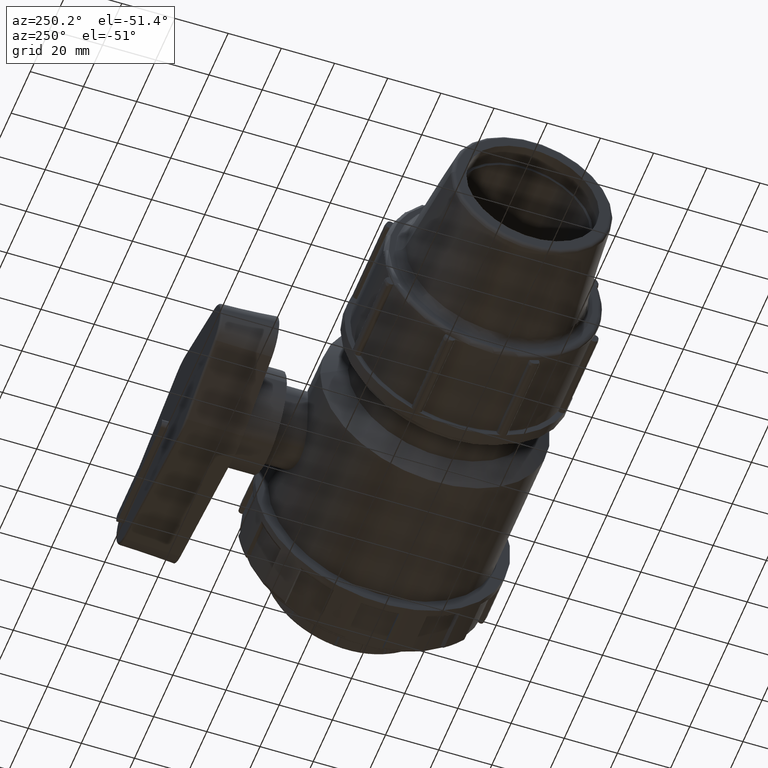
[diagram: clean part render]
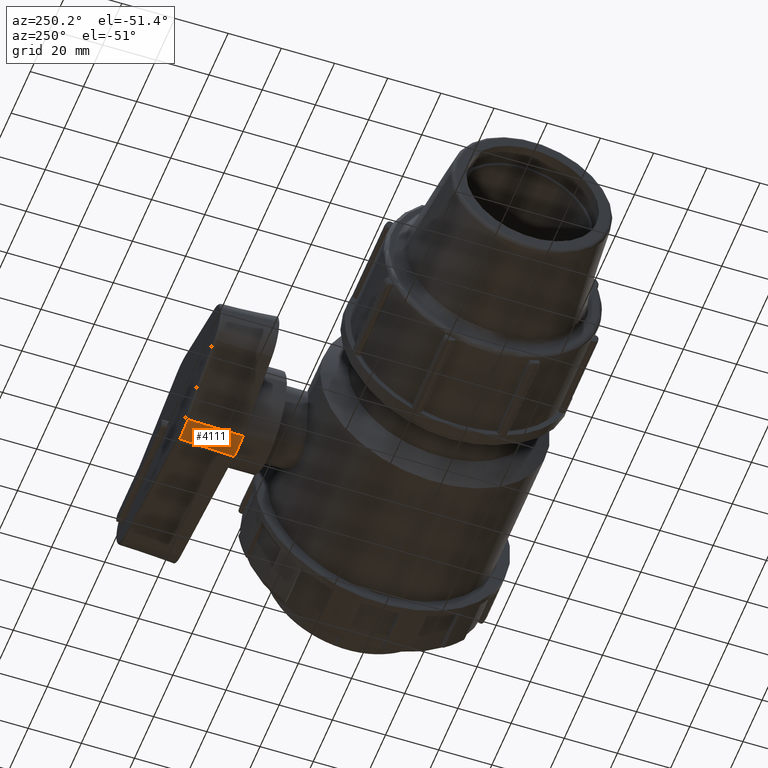
[diagram: same view with one face highlighted and labeled with its STEP entity id]
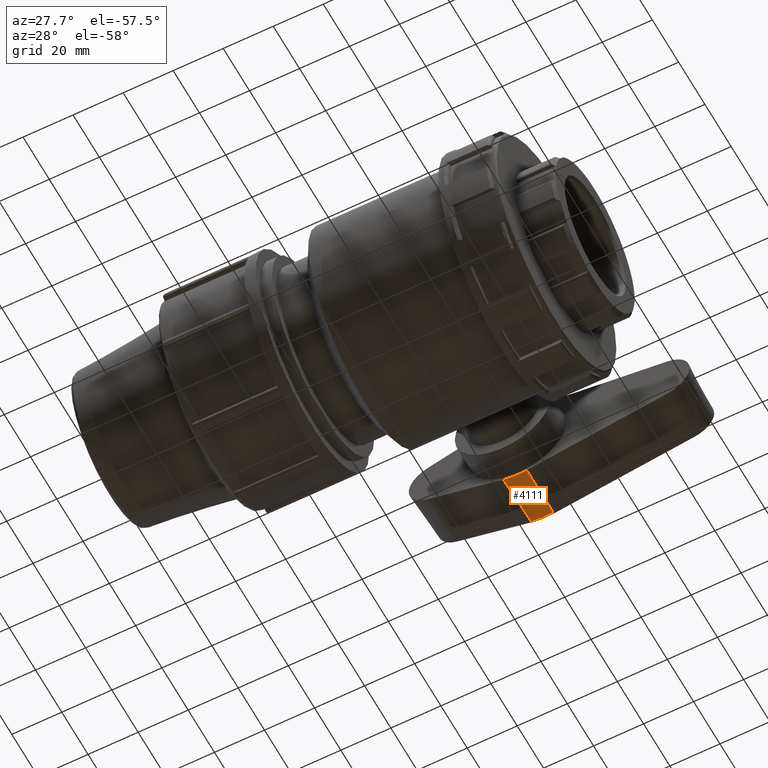
[diagram: same view with one face highlighted and labeled with its STEP entity id]
A machine part, auxiliary view. The second image highlights one B-rep face of the part: STEP entity #4111.
A second angle (auxiliary view) of the same face is appended — the face is thin or edge-on in the first view.
In plain terms, the highlighted conical surface has half-angle 3 deg.
Its self-contained STEP definition (entity closure, byte-faithful):
#26=CONICAL_SURFACE('',#4507,19.2,3.);
#491=FACE_OUTER_BOUND('',#747,.T.);
#747=EDGE_LOOP('',(#3282,#3283,#3284,#3285));
#996=LINE('',#7626,#1224);
#997=LINE('',#7629,#1225);
#1224=VECTOR('',#5400,20.6783791190687);
#1225=VECTOR('',#5403,20.6783791190688);
#1496=CIRCLE('',#4495,19.2445445098348);
#1504=CIRCLE('',#4508,20.3267672545854);
#1828=VERTEX_POINT('',#7592);
#1830=VERTEX_POINT('',#7598);
#1838=VERTEX_POINT('',#7625);
#1839=VERTEX_POINT('',#7627);
#2365=EDGE_CURVE('',#1828,#1830,#1496,.T.);
#2377=EDGE_CURVE('',#1828,#1838,#996,.T.);
#2378=EDGE_CURVE('',#1838,#1839,#1504,.T.);
#2379=EDGE_CURVE('',#1830,#1839,#997,.T.);
#3282=ORIENTED_EDGE('',*,*,#2365,.F.);
#3283=ORIENTED_EDGE('',*,*,#2377,.T.);
#3284=ORIENTED_EDGE('',*,*,#2378,.T.);
#3285=ORIENTED_EDGE('',*,*,#2379,.F.);
#4111=ADVANCED_FACE('',(#491),#26,.T.);
#4495=AXIS2_PLACEMENT_3D('',#7602,#5370,#5371);
#4507=AXIS2_PLACEMENT_3D('',#7624,#5398,#5399);
#4508=AXIS2_PLACEMENT_3D('',#7628,#5401,#5402);
#5370=DIRECTION('center_axis',(0.,1.,0.));
#5371=DIRECTION('ref_axis',(-0.0641128265110127,0.,-0.997942656407055));
#5398=DIRECTION('center_axis',(3.09829681290741E-16,-1.,0.));
#5399=DIRECTION('ref_axis',(1.,3.00964072940555E-16,0.));
#5400=DIRECTION('',(0.00869247716145812,-0.998629534754574,-0.0516090414235806));
#5401=DIRECTION('center_axis',(-3.00964072940555E-16,1.,0.));
#5402=DIRECTION('ref_axis',(1.,3.00964072940555E-16,0.));
#5403=DIRECTION('',(-0.0152250054524924,-0.998629534754574,-0.0500724627398623));
#7592=CARTESIAN_POINT('',(3.19632573173727,85.1500401191543,-18.9772494110092));
#7598=CARTESIAN_POINT('',(-5.5984129483156,85.1500401191543,-18.4122314196608));
#7602=CARTESIAN_POINT('Origin',(-1.06165076729781E-14,85.1500401191543,
0.));
#7624=CARTESIAN_POINT('Origin',(-9.99200722162641E-15,86.,0.));
#7625=CARTESIAN_POINT('',(3.37607206996574,64.5,-20.0444407355377));
#7626=CARTESIAN_POINT('',(3.18892733564014,86.,-18.9333235975094));
#7627=CARTESIAN_POINT('',(-5.91324138315212,64.5,-19.4476487876212));
#7628=CARTESIAN_POINT('Origin',(-3.33066907387547E-15,64.5,0.));
#7629=CARTESIAN_POINT('',(-5.58545454545456,86.,-18.3696134287214));